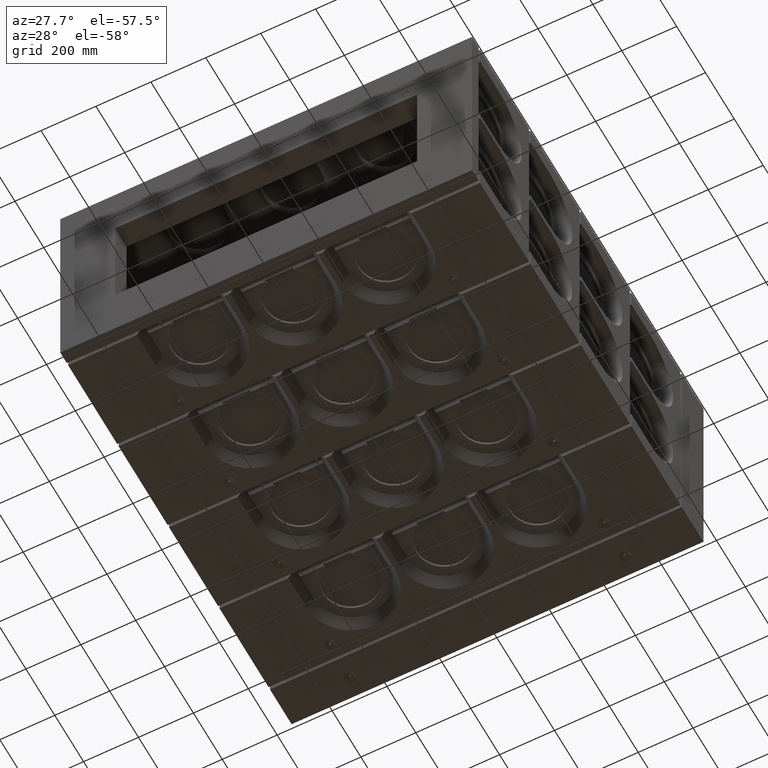
[diagram: clean part render]
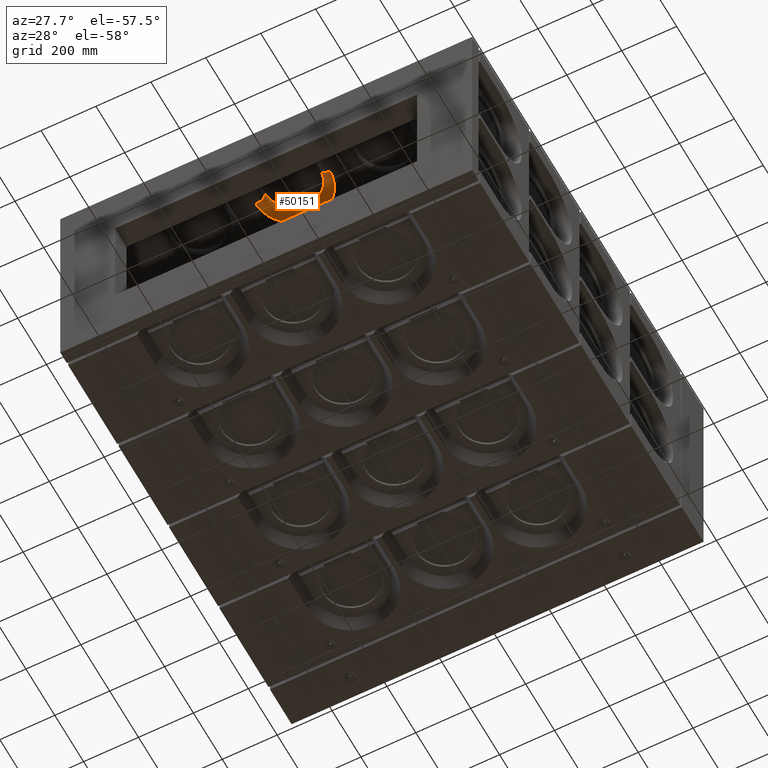
[diagram: same view with one face highlighted and labeled with its STEP entity id]
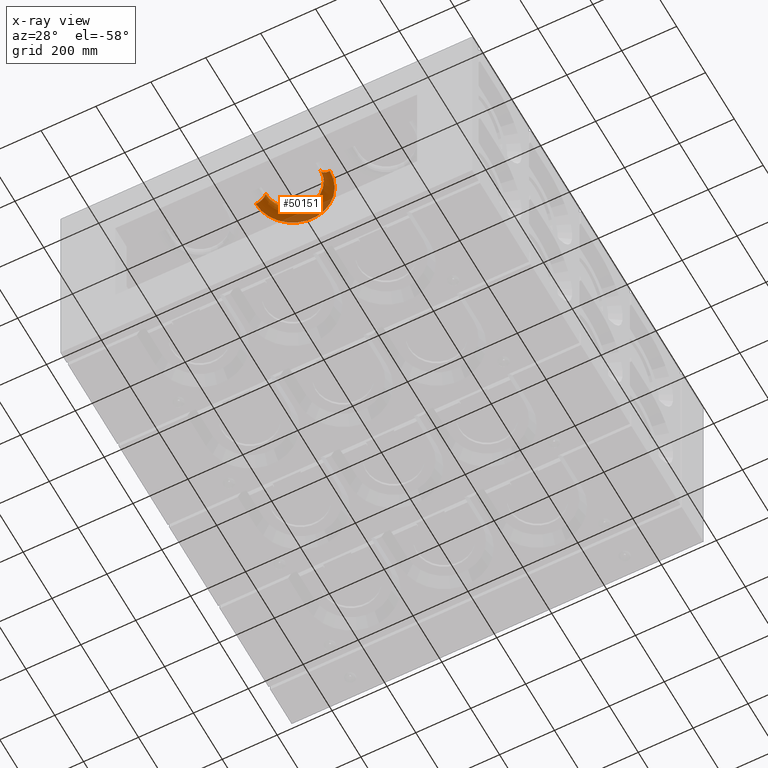
[diagram: x-ray of the same camera — body ghosted, the highlighted face saturated]
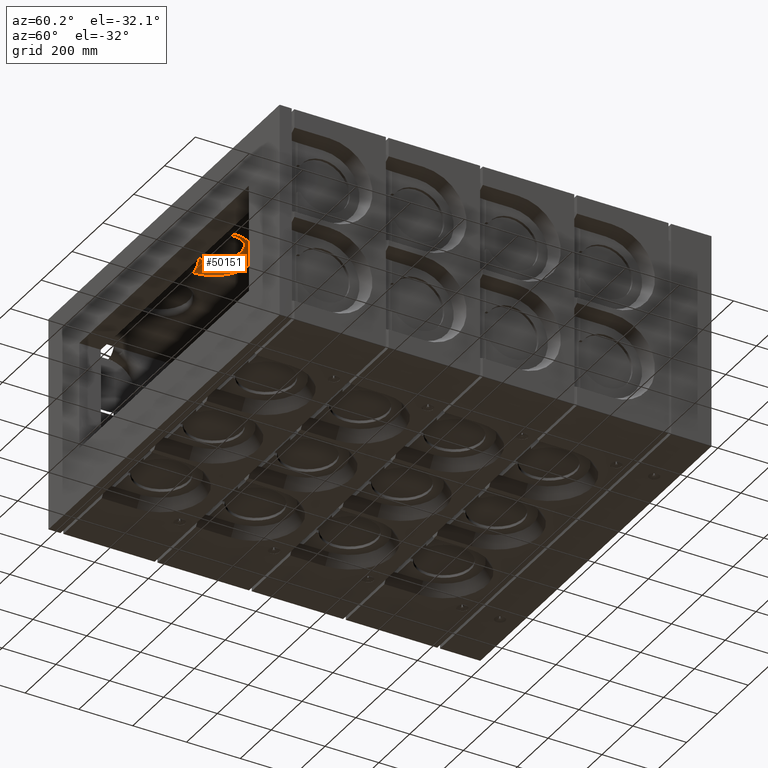
[diagram: same view with one face highlighted and labeled with its STEP entity id]
A machine part, auxiliary view. The second image highlights one B-rep face of the part: STEP entity #50151.
The next image is the same camera in x-ray: the body ghosted, the highlighted face saturated — about 28% of this face is hidden behind the body in this view.
A second angle (auxiliary view) of the same face is appended — the face is thin or edge-on in the first view.
In plain terms, the highlighted toroidal blend (fillet) surface has major radius 135 mm and minor (blend) radius 35 mm.
Its self-contained STEP definition (entity closure, byte-faithful):
#908 = CIRCLE ( 'NONE', #9750, 35.00000000000000000 ) ;
#978 = ORIENTED_EDGE ( 'NONE', *, *, #47734, .F. ) ;
#2209 = EDGE_CURVE ( 'NONE', #16472, #34376, #9927, .T. ) ;
#2413 = CARTESIAN_POINT ( 'NONE',  ( -135.0000000000000000, 185.0000000000000568, 300.0000000000002274 ) ) ;
#4010 = ORIENTED_EDGE ( 'NONE', *, *, #33613, .F. ) ;
#4926 = AXIS2_PLACEMENT_3D ( 'NONE', #24627, #49048, #45180 ) ;
#5227 = AXIS2_PLACEMENT_3D ( 'NONE', #40248, #20394, #24095 ) ;
#5465 = DIRECTION ( 'NONE',  ( 1.000000000000000000, 0.0000000000000000000, 0.0000000000000000000 ) ) ;
#9750 = AXIS2_PLACEMENT_3D ( 'NONE', #49034, #49207, #5465 ) ;
#9927 = CIRCLE ( 'NONE', #5227, 99.99999999999997158 ) ;
#10883 = TOROIDAL_SURFACE ( 'NONE', #34451, 134.9999999999999716, 35.00000000000000000 ) ;
#11958 = ORIENTED_EDGE ( 'NONE', *, *, #2209, .F. ) ;
#13871 = DIRECTION ( 'NONE',  ( -1.881626355904905735E-48, -1.000000000000000000, -2.775557561562891351E-16 ) ) ;
#16472 = VERTEX_POINT ( 'NONE', #32945 ) ;
#20394 = DIRECTION ( 'NONE',  ( -1.734723475976807711E-17, 4.996003610813204432E-16, -1.000000000000000000 ) ) ;
#22066 = EDGE_CURVE ( 'NONE', #49838, #34376, #908, .T. ) ;
#22151 = DIRECTION ( 'NONE',  ( -1.000000000000000000, 0.0000000000000000000, 0.0000000000000000000 ) ) ;
#24095 = DIRECTION ( 'NONE',  ( -1.000000000000000000, 0.0000000000000000000, 0.0000000000000000000 ) ) ;
#24627 = CARTESIAN_POINT ( 'NONE',  ( 0.0000000000000000000, 185.0000000000000568, 300.0000000000002274 ) ) ;
#27370 = AXIS2_PLACEMENT_3D ( 'NONE', #49529, #13871, #22151 ) ;
#28413 = EDGE_LOOP ( 'NONE', ( #30095, #11958, #978, #4010 ) ) ;
#30095 = ORIENTED_EDGE ( 'NONE', *, *, #22066, .T. ) ;
#30264 = CARTESIAN_POINT ( 'NONE',  ( 135.0000000000000000, 185.0000000000000568, 300.0000000000002274 ) ) ;
#30925 = FACE_OUTER_BOUND ( 'NONE', #28413, .T. ) ;
#32792 = CIRCLE ( 'NONE', #4926, 134.9999999999999716 ) ;
#32945 = CARTESIAN_POINT ( 'NONE',  ( -99.99999999999997158, 185.0000000000000568, 335.0000000000001705 ) ) ;
#33613 = EDGE_CURVE ( 'NONE', #49838, #37505, #32792, .T. ) ;
#34376 = VERTEX_POINT ( 'NONE', #46852 ) ;
#34451 = AXIS2_PLACEMENT_3D ( 'NONE', #46886, #35681, #39681 ) ;
#35681 = DIRECTION ( 'NONE',  ( -1.734723475976807711E-17, 4.996003610813204432E-16, -1.000000000000000000 ) ) ;
#37505 = VERTEX_POINT ( 'NONE', #2413 ) ;
#39681 = DIRECTION ( 'NONE',  ( -1.000000000000000000, -8.666684749742564076E-33, 1.734723475976807711E-17 ) ) ;
#40248 = CARTESIAN_POINT ( 'NONE',  ( 0.0000000000000000000, 185.0000000000000568, 335.0000000000001705 ) ) ;
#43182 = CIRCLE ( 'NONE', #27370, 35.00000000000000000 ) ;
#45180 = DIRECTION ( 'NONE',  ( -1.000000000000000000, 0.0000000000000000000, 0.0000000000000000000 ) ) ;
#46852 = CARTESIAN_POINT ( 'NONE',  ( 99.99999999999997158, 185.0000000000000568, 335.0000000000001705 ) ) ;
#46886 = CARTESIAN_POINT ( 'NONE',  ( 0.0000000000000000000, 185.0000000000000568, 335.0000000000001705 ) ) ;
#47734 = EDGE_CURVE ( 'NONE', #37505, #16472, #43182, .T. ) ;
#49034 = CARTESIAN_POINT ( 'NONE',  ( 135.0000000000000000, 185.0000000000000568, 335.0000000000001705 ) ) ;
#49048 = DIRECTION ( 'NONE',  ( 1.734723475976807711E-17, -4.996003610813204432E-16, 1.000000000000000000 ) ) ;
#49207 = DIRECTION ( 'NONE',  ( 1.881626355904905735E-48, 1.000000000000000000, 2.775557561562891351E-16 ) ) ;
#49529 = CARTESIAN_POINT ( 'NONE',  ( -135.0000000000000000, 185.0000000000000568, 335.0000000000001705 ) ) ;
#49838 = VERTEX_POINT ( 'NONE', #30264 ) ;
#50151 = ADVANCED_FACE ( 'NONE', ( #30925 ), #10883, .T. ) ;